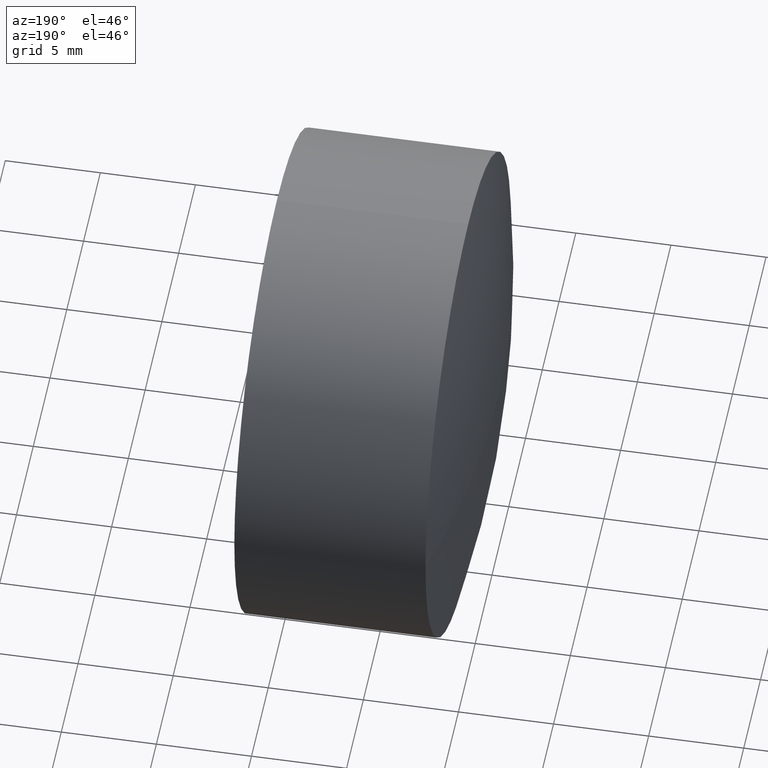
[diagram: clean part render]
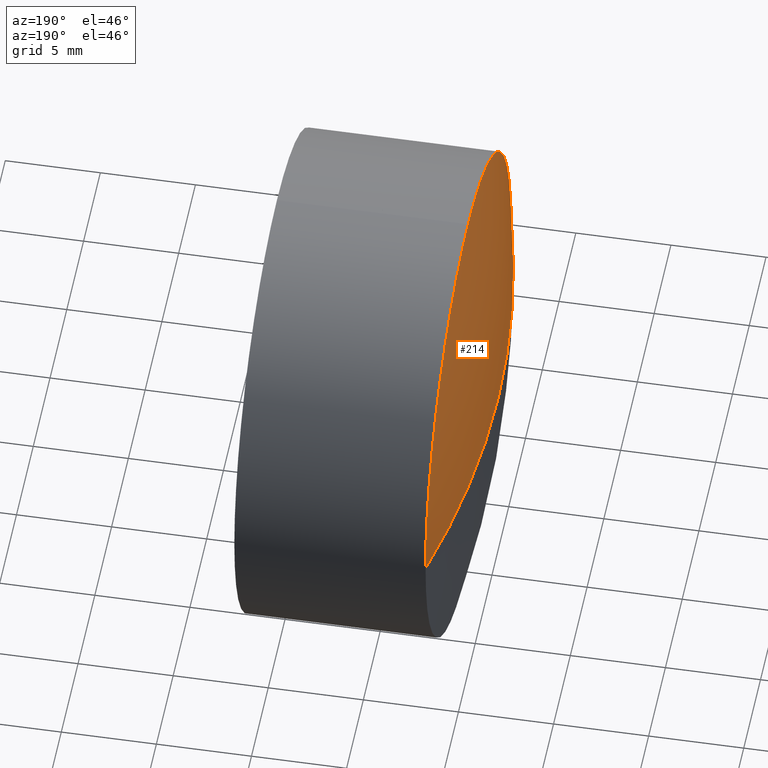
[diagram: same view with one face highlighted and labeled with its STEP entity id]
A machine part, auxiliary view. The second image highlights one B-rep face of the part: STEP entity #214.
In plain terms, the highlighted spherical surface has radius 51.98 mm.
Its self-contained STEP definition (entity closure, byte-faithful):
#4 = AXIS2_PLACEMENT_3D ( 'NONE', #197, #401, #18 ) ;
#12 = ORIENTED_EDGE ( 'NONE', *, *, #202, .T. ) ;
#18 = DIRECTION ( 'NONE',  ( 0.000000000000000000, 0.000000000000000000, 1.000000000000000000 ) ) ;
#60 = CARTESIAN_POINT ( 'NONE',  ( -13.75656378347417963, 12.74597092655643138, 25.39999999999999858 ) ) ;
#66 = DIRECTION ( 'NONE',  ( 0.000000000000000000, 0.000000000000000000, 1.000000000000000000 ) ) ;
#68 = EDGE_CURVE ( 'NONE', #203, #115, #278, .T. ) ;
#105 = FACE_OUTER_BOUND ( 'NONE', #431, .T. ) ;
#115 = VERTEX_POINT ( 'NONE', #60 ) ;
#139 = CARTESIAN_POINT ( 'NONE',  ( -13.75656378347417785, 0.04597092655641990544, 25.39999999999999858 ) ) ;
#158 = CIRCLE ( 'NONE', #347, 51.97999999999999687 ) ;
#174 = SPHERICAL_SURFACE ( 'NONE', #404, 51.97999999999999687 ) ;
#176 = DIRECTION ( 'NONE',  ( -0.000000000000000000, 0.000000000000000000, 1.000000000000000000 ) ) ;
#178 = CIRCLE ( 'NONE', #369, 51.97999999999999687 ) ;
#185 = ORIENTED_EDGE ( 'NONE', *, *, #241, .T. ) ;
#195 = EDGE_CURVE ( 'NONE', #290, #363, #178, .T. ) ;
#197 = CARTESIAN_POINT ( 'NONE',  ( -13.75656378347417785, 0.04597092655641990544, 25.39999999999999858 ) ) ;
#202 = EDGE_CURVE ( 'NONE', #290, #203, #238, .T. ) ;
#203 = VERTEX_POINT ( 'NONE', #310 ) ;
#214 = ADVANCED_FACE ( 'NONE', ( #105 ), #174, .T. ) ;
#216 = CARTESIAN_POINT ( 'NONE',  ( 36.64810266716310139, 0.04597092655641990544, 25.39999999999999858 ) ) ;
#220 = CARTESIAN_POINT ( 'NONE',  ( -15.33189733283689371, 0.04597092655642309039, 25.39999999999999858 ) ) ;
#238 = CIRCLE ( 'NONE', #424, 12.69999999999999574 ) ;
#241 = EDGE_CURVE ( 'NONE', #115, #363, #158, .T. ) ;
#242 = DIRECTION ( 'NONE',  ( 0.000000000000000000, 1.000000000000000000, 0.000000000000000000 ) ) ;
#251 = CARTESIAN_POINT ( 'NONE',  ( 36.64810266716310139, 0.04597092655641990544, 25.39999999999999858 ) ) ;
#276 = CARTESIAN_POINT ( 'NONE',  ( -13.75656378347417963, -12.65402907344359207, 25.39999999999999858 ) ) ;
#278 = CIRCLE ( 'NONE', #4, 12.69999999999999574 ) ;
#290 = VERTEX_POINT ( 'NONE', #276 ) ;
#310 = CARTESIAN_POINT ( 'NONE',  ( -13.75656378347417785, 0.04597092655641990544, 38.09999999999999432 ) ) ;
#339 = ORIENTED_EDGE ( 'NONE', *, *, #195, .F. ) ;
#342 = DIRECTION ( 'NONE',  ( 0.000000000000000000, 1.000000000000000000, 1.334916103098735929E-16 ) ) ;
#347 = AXIS2_PLACEMENT_3D ( 'NONE', #251, #176, #348 ) ;
#348 = DIRECTION ( 'NONE',  ( 1.000000000000000000, 0.000000000000000000, 0.000000000000000000 ) ) ;
#363 = VERTEX_POINT ( 'NONE', #220 ) ;
#369 = AXIS2_PLACEMENT_3D ( 'NONE', #413, #375, #342 ) ;
#375 = DIRECTION ( 'NONE',  ( 0.000000000000000000, 1.224646799147353207E-16, -1.000000000000000000 ) ) ;
#380 = DIRECTION ( 'NONE',  ( -0.000000000000000000, 0.000000000000000000, -1.000000000000000000 ) ) ;
#401 = DIRECTION ( 'NONE',  ( -1.000000000000000000, -0.000000000000000000, -0.000000000000000000 ) ) ;
#402 = ORIENTED_EDGE ( 'NONE', *, *, #68, .T. ) ;
#404 = AXIS2_PLACEMENT_3D ( 'NONE', #216, #380, #242 ) ;
#407 = DIRECTION ( 'NONE',  ( -1.000000000000000000, -0.000000000000000000, -0.000000000000000000 ) ) ;
#413 = CARTESIAN_POINT ( 'NONE',  ( 36.64810266716310139, 0.04597092655641990544, 25.39999999999999858 ) ) ;
#424 = AXIS2_PLACEMENT_3D ( 'NONE', #139, #407, #66 ) ;
#431 = EDGE_LOOP ( 'NONE', ( #339, #12, #402, #185 ) ) ;